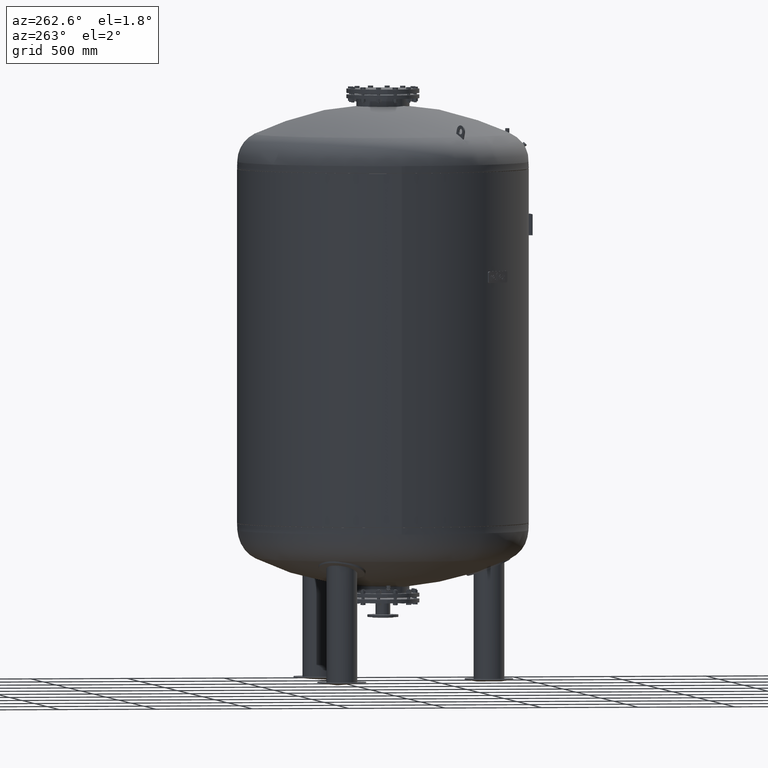
[diagram: clean part render]
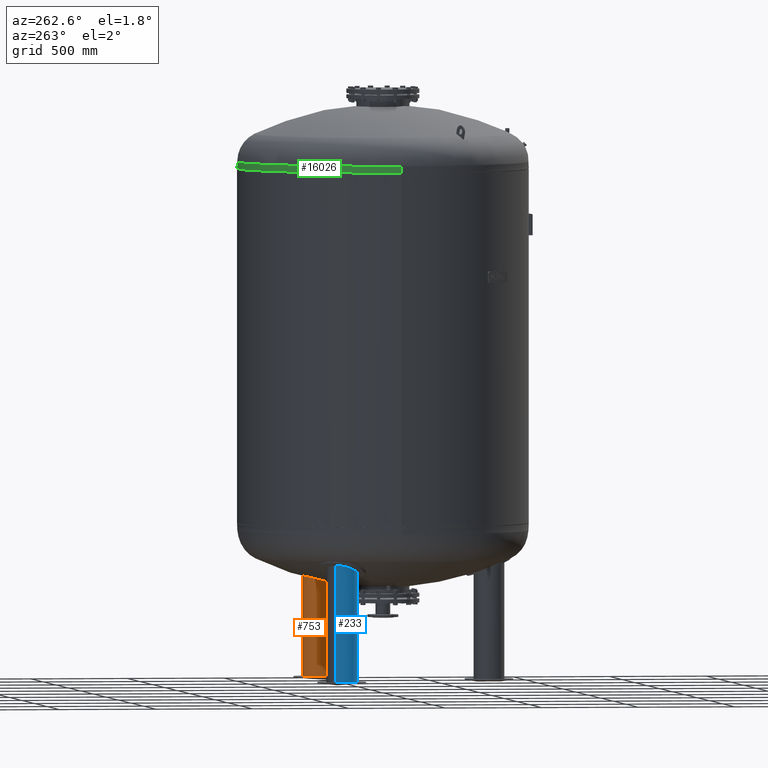
[diagram: same view with three faces highlighted in distinct colors, each labeled with its STEP entity id]
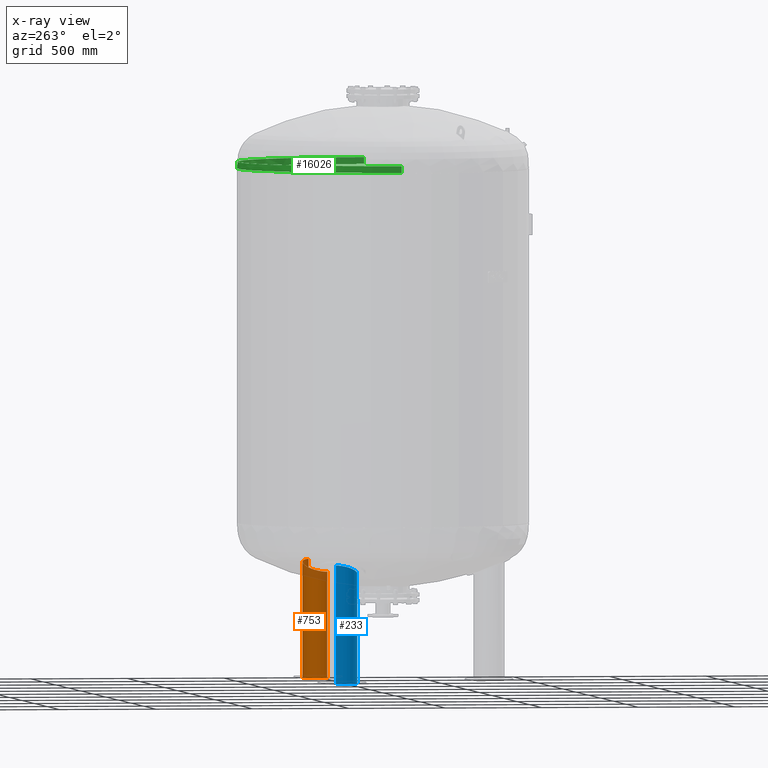
[diagram: x-ray of the same camera — body ghosted, the three highlighted faces saturated]
A machine part, auxiliary view with three faces highlighted in distinct colors.
The next image is the same camera in x-ray (body ghosted, the three faces saturated) — at least one of them is partly hidden behind the body in this view.
Their STEP definitions:

[orange] entity #753 — the highlighted cylindrical surface (edge-blend (fillet) strip) has radius 79.5 mm, axis along (-0, 0, -1).
#687=CARTESIAN_POINT('',(476.313972081441250,274.999999999999890,15.815585141290533));
#688=DIRECTION('',(-9.184851E-017,1.590863E-016,-1.0));
#689=DIRECTION('',(0.866025403784439,0.500000000000000,0.0));
#690=AXIS2_PLACEMENT_3D('',#687,#688,#689);
#691=CYLINDRICAL_SURFACE('',#690,79.500000000000000);
#692=CARTESIAN_POINT('',(545.162991682304100,314.749999999999890,11.631170282581067));
#693=VERTEX_POINT('',#692);
#694=CARTESIAN_POINT('',(545.162991682304780,314.750000000000110,619.974328976416250));
#695=VERTEX_POINT('',#694);
#696=CARTESIAN_POINT('',(545.162991682304100,314.749999999999890,11.631170282581067));
#697=DIRECTION('',(0.0,0.0,1.0));
#698=VECTOR('',#697,608.343158693835220);
#699=LINE('',#696,#698);
#700=EDGE_CURVE('',#693,#695,#699,.T.);
#701=ORIENTED_EDGE('',*,*,#700,.F.);
#702=CARTESIAN_POINT('',(407.464952480578400,235.249999999999890,11.631170282581067));
#703=VERTEX_POINT('',#702);
#704=CARTESIAN_POINT('',(476.313972081441250,274.999999999999890,11.631170282581067));
#705=DIRECTION('',(0.0,0.0,-1.0));
#706=DIRECTION('',(0.866025403784439,0.500000000000000,0.0));
#707=AXIS2_PLACEMENT_3D('',#704,#705,#706);
#708=CIRCLE('',#707,79.500000000000000);
#709=EDGE_CURVE('',#703,#693,#708,.T.);
#710=ORIENTED_EDGE('',*,*,#709,.F.);
#711=CARTESIAN_POINT('',(407.464952480578400,235.249999999999770,557.801446445446690));
#712=VERTEX_POINT('',#711);
#713=CARTESIAN_POINT('',(407.464952480578400,235.249999999999890,11.631170282581067));
#714=DIRECTION('',(0.0,0.0,1.0));
#715=VECTOR('',#714,546.170276162865660);
#716=LINE('',#713,#715);
#717=EDGE_CURVE('',#703,#712,#716,.T.);
#718=ORIENTED_EDGE('',*,*,#717,.T.);
#719=CARTESIAN_POINT('',(435.923993297311600,343.475540259405930,588.259208461118310));
#720=VERTEX_POINT('',#719);
#721=CARTESIAN_POINT('',(407.464952480578400,235.249999999999770,557.801446445446690));
#722=CARTESIAN_POINT('',(403.404620725765540,242.282700894920990,557.801446445446690));
#723=CARTESIAN_POINT('',(400.451610787080200,249.885975801156460,558.277369662588170));
#724=CARTESIAN_POINT('',(396.597055088747990,267.270620755335530,560.328261777430270));
#725=CARTESIAN_POINT('',(396.270319464510980,276.954377197880090,562.075596332598020));
#726=CARTESIAN_POINT('',(399.072489778784760,296.341456745020710,566.734659420112730));
#727=CARTESIAN_POINT('',(402.373919211337180,305.818108910622530,569.661195647944850));
#728=CARTESIAN_POINT('',(412.496769615312990,323.583126452498560,576.486089468713540));
#729=CARTESIAN_POINT('',(419.500370050858520,331.582796994881960,580.391859104990320));
#730=CARTESIAN_POINT('',(430.379304327032230,339.969799272506860,585.699021239809100));
#731=CARTESIAN_POINT('',(433.101443881988190,341.810672620973380,586.978453284904280));
#732=CARTESIAN_POINT('',(435.923993297311600,343.475540259405930,588.259208461118310));
#733=B_SPLINE_CURVE_WITH_KNOTS('',3,(#721,#722,#723,#724,#725,#726,#727,#728,#729,#730,#731,#732),.UNSPECIFIED.,.F.,.U.,(4,2,2,2,2,4),(25.946274642103887,28.391196783303212,31.323094720106891,34.426409319311013,37.777807879739491,38.832927063684011),.UNSPECIFIED.);
#734=EDGE_CURVE('',#712,#720,#733,.T.);
#735=ORIENTED_EDGE('',*,*,#734,.T.);
#736=CARTESIAN_POINT('',(435.923993297311600,343.475540259405930,588.259208461118310));
#737=CARTESIAN_POINT('',(442.620858014037540,347.425654749982640,591.297966296069830));
#738=CARTESIAN_POINT('',(449.882913637144440,350.384943361649900,594.344322088061060));
#739=CARTESIAN_POINT('',(468.025368474697360,354.807454012759190,601.394273940897850));
#740=CARTESIAN_POINT('',(479.095487505130900,355.220505554612880,605.264897102246320));
#741=CARTESIAN_POINT('',(500.101187832981220,351.546225351953470,611.749699955350710));
#742=CARTESIAN_POINT('',(509.890893953472470,347.824400099864820,614.383971692484580));
#743=CARTESIAN_POINT('',(524.123023604612060,338.831776724313670,617.505471067215810));
#744=CARTESIAN_POINT('',(529.077385518121330,334.809706666959300,618.415766111970470));
#745=CARTESIAN_POINT('',(538.005689491232830,325.557982821373120,619.656658887407730));
#746=CARTESIAN_POINT('',(541.918381164990710,320.369830266758470,619.974328976416020));
#747=CARTESIAN_POINT('',(545.162991682303980,314.749999999999660,619.974328976416020));
#748=B_SPLINE_CURVE_WITH_KNOTS('',3,(#736,#737,#738,#739,#740,#741,#742,#743,#744,#745,#746,#747),.UNSPECIFIED.,.F.,.U.,(4,2,2,2,2,4),(38.832927063684011,41.336334230459492,44.806614551580793,48.013896662752792,49.941938919734973,51.888705230122902),.UNSPECIFIED.);
#749=EDGE_CURVE('',#720,#695,#748,.T.);
#750=ORIENTED_EDGE('',*,*,#749,.T.);
#751=EDGE_LOOP('',(#701,#710,#718,#735,#750));
#752=FACE_OUTER_BOUND('',#751,.T.);
#753=ADVANCED_FACE('',(#752),#691,.T.);

[blue] entity #233 — the highlighted cylindrical surface (edge-blend (fillet) strip) has radius 79.5 mm, axis along (-0, -0, -1).
#167=CARTESIAN_POINT('',(-476.313972081441020,275.000000000000170,15.815585141290533));
#168=DIRECTION('',(-9.184851E-017,-1.590863E-016,-1.0));
#169=DIRECTION('',(-0.866025403784439,0.500000000000000,0.0));
#170=AXIS2_PLACEMENT_3D('',#167,#168,#169);
#171=CYLINDRICAL_SURFACE('',#170,79.500000000000000);
#172=CARTESIAN_POINT('',(-545.162991682303870,314.750000000000170,11.631170282581067));
#173=VERTEX_POINT('',#172);
#174=CARTESIAN_POINT('',(-545.162991682304440,314.750000000000570,619.974328976416250));
#175=VERTEX_POINT('',#174);
#176=CARTESIAN_POINT('',(-545.162991682303870,314.750000000000170,11.631170282581067));
#177=DIRECTION('',(0.0,0.0,1.0));
#178=VECTOR('',#177,608.343158693835220);
#179=LINE('',#176,#178);
#180=EDGE_CURVE('',#173,#175,#179,.T.);
#181=ORIENTED_EDGE('',*,*,#180,.F.);
#182=CARTESIAN_POINT('',(-407.464952480578180,235.250000000000170,11.631170282581067));
#183=VERTEX_POINT('',#182);
#184=CARTESIAN_POINT('',(-476.313972081441020,275.000000000000170,11.631170282581067));
#185=DIRECTION('',(0.0,0.0,-1.0));
#186=DIRECTION('',(-0.866025403784439,0.500000000000000,0.0));
#187=AXIS2_PLACEMENT_3D('',#184,#185,#186);
#188=CIRCLE('',#187,79.500000000000000);
#189=EDGE_CURVE('',#183,#173,#188,.T.);
#190=ORIENTED_EDGE('',*,*,#189,.F.);
#191=CARTESIAN_POINT('',(-407.464952480578180,235.250000000000260,557.801446445446910));
#192=VERTEX_POINT('',#191);
#193=CARTESIAN_POINT('',(-407.464952480578180,235.250000000000170,11.631170282581067));
#194=DIRECTION('',(0.0,0.0,1.0));
#195=VECTOR('',#194,546.170276162865890);
#196=LINE('',#193,#195);
#197=EDGE_CURVE('',#183,#192,#196,.T.);
#198=ORIENTED_EDGE('',*,*,#197,.T.);
#199=CARTESIAN_POINT('',(-515.420540091885870,205.783482184926410,588.259208461118310));
#200=VERTEX_POINT('',#199);
#201=CARTESIAN_POINT('',(-407.464952480578180,235.250000000000260,557.801446445446910));
#202=CARTESIAN_POINT('',(-411.525284235391040,228.217299105079060,557.801446445446910));
#203=CARTESIAN_POINT('',(-416.633408486804970,221.858280027431870,558.277369662588170));
#204=CARTESIAN_POINT('',(-429.761674803730840,209.827814395284580,560.328261777430270));
#205=CARTESIAN_POINT('',(-437.984686074917190,204.702974823101700,562.075596332598020));
#206=CARTESIAN_POINT('',(-456.175474625067580,197.436185727423090,566.734659420112730));
#207=CARTESIAN_POINT('',(-466.033210859583790,195.556981402014230,569.661195647944850));
#208=CARTESIAN_POINT('',(-486.479592551512500,195.441118239628850,576.486089468713540));
#209=CARTESIAN_POINT('',(-496.909310680895320,197.506578863575330,580.391859104990320));
#210=CARTESIAN_POINT('',(-509.612134853003230,202.734511174030560,585.699021239809100));
#211=CARTESIAN_POINT('',(-512.567447715402980,204.171516507035680,586.978453284904280));
#212=CARTESIAN_POINT('',(-515.420540091885870,205.783482184926410,588.259208461118310));
#213=B_SPLINE_CURVE_WITH_KNOTS('',3,(#201,#202,#203,#204,#205,#206,#207,#208,#209,#210,#211,#212),.UNSPECIFIED.,.F.,.U.,(4,2,2,2,2,4),(25.946274642103891,28.391196783303212,31.323094720106891,34.426409319311013,37.777807879739491,38.832927063684004),.UNSPECIFIED.);
#214=EDGE_CURVE('',#192,#200,#213,.T.);
#215=ORIENTED_EDGE('',*,*,#214,.T.);
#216=CARTESIAN_POINT('',(-515.420540091885870,205.783482184926410,588.259208461118310));
#217=CARTESIAN_POINT('',(-522.189871946945230,209.608079910030400,591.297966296069830));
#218=CARTESIAN_POINT('',(-528.383718873332550,214.417560257502880,594.344322088060950));
#219=CARTESIAN_POINT('',(-541.284952864476960,227.918131708280980,601.394273940897850));
#220=CARTESIAN_POINT('',(-547.177725508011350,237.298610240627110,605.264897102246320));
#221=CARTESIAN_POINT('',(-554.498555675811190,257.327220450158340,611.749699955350710));
#222=CARTESIAN_POINT('',(-556.170213519301680,267.666267272132070,614.383971692484580));
#223=CARTESIAN_POINT('',(-555.498438054978460,284.487964787748300,617.505471067215810));
#224=CARTESIAN_POINT('',(-554.492404166263440,290.789603093066600,618.415766111970470));
#225=CARTESIAN_POINT('',(-550.944328273743280,303.147603069283780,619.656658887407730));
#226=CARTESIAN_POINT('',(-548.407602199616800,309.130169733241300,619.974328976416020));
#227=CARTESIAN_POINT('',(-545.162991682303640,314.750000000000110,619.974328976416020));
#228=B_SPLINE_CURVE_WITH_KNOTS('',3,(#216,#217,#218,#219,#220,#221,#222,#223,#224,#225,#226,#227),.UNSPECIFIED.,.F.,.U.,(4,2,2,2,2,4),(38.832927063684004,41.336334230459492,44.806614551580793,48.013896662752792,49.941938919734973,51.888705230122902),.UNSPECIFIED.);
#229=EDGE_CURVE('',#200,#175,#228,.T.);
#230=ORIENTED_EDGE('',*,*,#229,.T.);
#231=EDGE_LOOP('',(#181,#190,#198,#215,#230));
#232=FACE_OUTER_BOUND('',#231,.T.);
#233=ADVANCED_FACE('',(#232),#171,.T.);

[green] entity #16026 — the highlighted cylindrical surface (partial cylindrical patch) has radius 750 mm, axis along (0, -0, -1).
#15976=CARTESIAN_POINT('',(1.545938E-014,-5.742715E-014,2661.381166292050700));
#15977=DIRECTION('',(4.945121E-017,-1.836970E-016,-1.0));
#15978=DIRECTION('',(1.0,0.0,0.0));
#15979=AXIS2_PLACEMENT_3D('',#15976,#15977,#15978);
#15980=CYLINDRICAL_SURFACE('',#15979,750.0);
#15981=CARTESIAN_POINT('',(750.0,-6.062002E-014,2644.0));
#15982=VERTEX_POINT('',#15981);
#15983=CARTESIAN_POINT('',(750.0,-5.423428E-014,2678.762332584101800));
#15984=VERTEX_POINT('',#15983);
#15985=CARTESIAN_POINT('',(750.0,-6.062002E-014,2644.0));
#15986=DIRECTION('',(0.0,0.0,1.0));
#15987=VECTOR('',#15986,34.762332584101841);
#15988=LINE('',#15985,#15987);
#15989=EDGE_CURVE('',#15982,#15984,#15988,.T.);
#15990=ORIENTED_EDGE('',*,*,#15989,.F.);
#15991=CARTESIAN_POINT('',(-750.0,3.122546E-014,2644.0));
#15992=VERTEX_POINT('',#15991);
#15993=CARTESIAN_POINT('',(1.631890E-014,-6.062002E-014,2644.0));
#15994=DIRECTION('',(0.0,0.0,-1.0));
#15995=DIRECTION('',(1.0,0.0,0.0));
#15996=AXIS2_PLACEMENT_3D('',#15993,#15994,#15995);
#15997=CIRCLE('',#15996,750.0);
#15998=EDGE_CURVE('',#15992,#15982,#15997,.T.);
#15999=ORIENTED_EDGE('',*,*,#15998,.F.);
#16000=CARTESIAN_POINT('',(-750.0,3.761120E-014,2678.762332584101800));
#16001=VERTEX_POINT('',#16000);
#16002=CARTESIAN_POINT('',(-750.0,3.122546E-014,2644.0));
#16003=DIRECTION('',(0.0,0.0,1.0));
#16004=VECTOR('',#16003,34.762332584101841);
#16005=LINE('',#16002,#16004);
#16006=EDGE_CURVE('',#15992,#16001,#16005,.T.);
#16007=ORIENTED_EDGE('',*,*,#16006,.T.);
#16008=CARTESIAN_POINT('',(1.267436E-013,750.0,2678.762332584101800));
#16009=VERTEX_POINT('',#16008);
#16010=CARTESIAN_POINT('',(1.459986E-014,-5.423428E-014,2678.762332584101800));
#16011=DIRECTION('',(0.0,0.0,-1.0));
#16012=DIRECTION('',(1.0,0.0,0.0));
#16013=AXIS2_PLACEMENT_3D('',#16010,#16011,#16012);
#16014=CIRCLE('',#16013,750.0);
#16015=EDGE_CURVE('',#16001,#16009,#16014,.T.);
#16016=ORIENTED_EDGE('',*,*,#16015,.T.);
#16017=CARTESIAN_POINT('',(1.459986E-014,-5.423428E-014,2678.762332584101800));
#16018=DIRECTION('',(0.0,0.0,-1.0));
#16019=DIRECTION('',(1.0,0.0,0.0));
#16020=AXIS2_PLACEMENT_3D('',#16017,#16018,#16019);
#16021=CIRCLE('',#16020,750.0);
#16022=EDGE_CURVE('',#16009,#15984,#16021,.T.);
#16023=ORIENTED_EDGE('',*,*,#16022,.T.);
#16024=EDGE_LOOP('',(#15990,#15999,#16007,#16016,#16023));
#16025=FACE_OUTER_BOUND('',#16024,.T.);
#16026=ADVANCED_FACE('',(#16025),#15980,.T.);